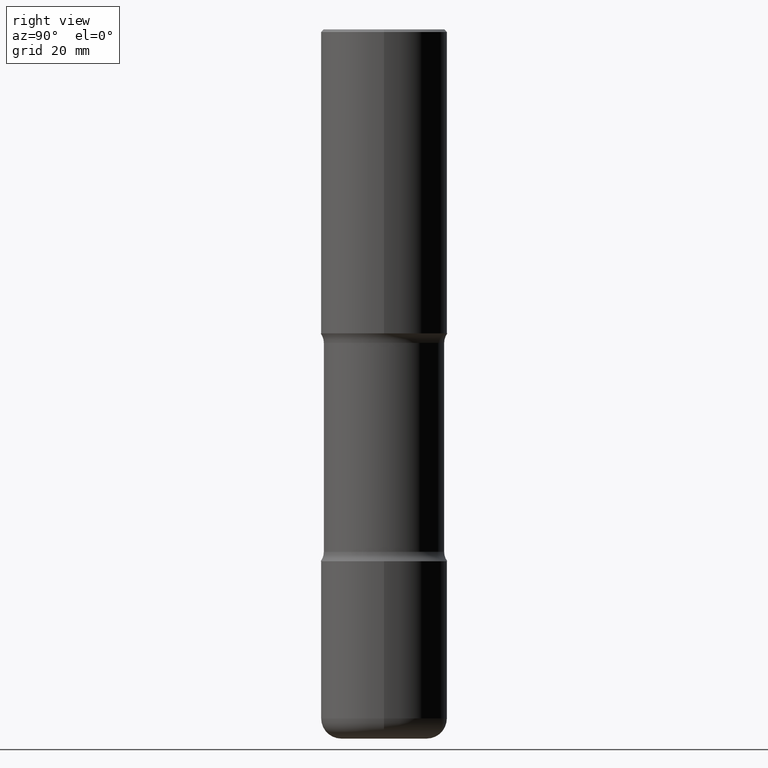
[diagram: clean part render]
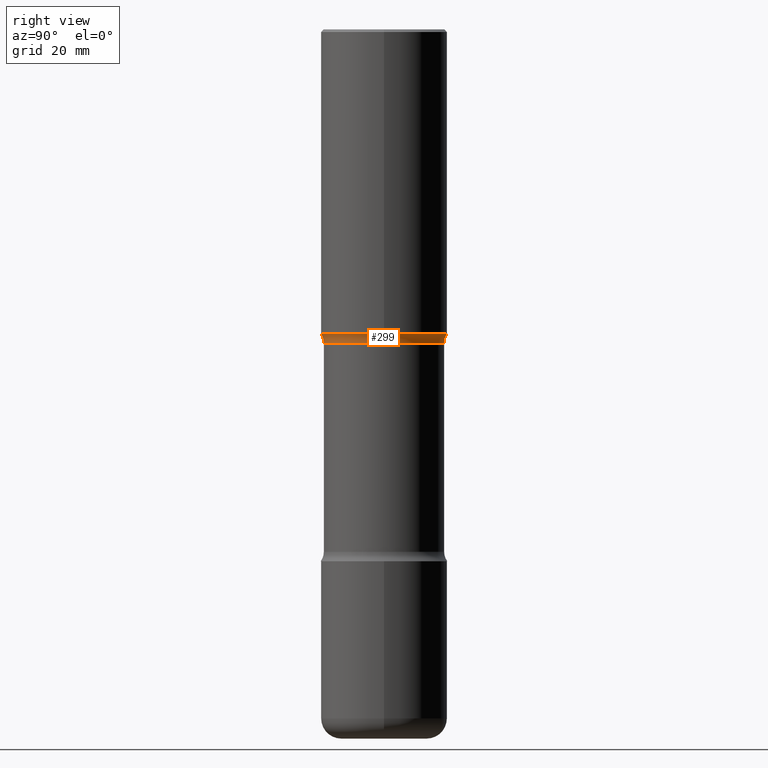
[diagram: same view with one face highlighted and labeled with its STEP entity id]
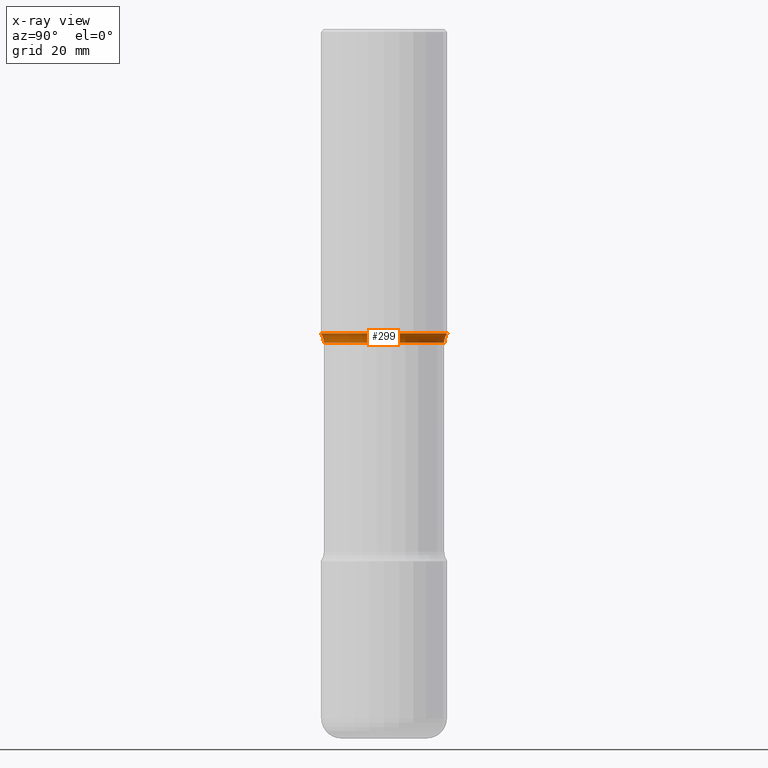
[diagram: x-ray of the same camera — body ghosted, the highlighted face saturated]
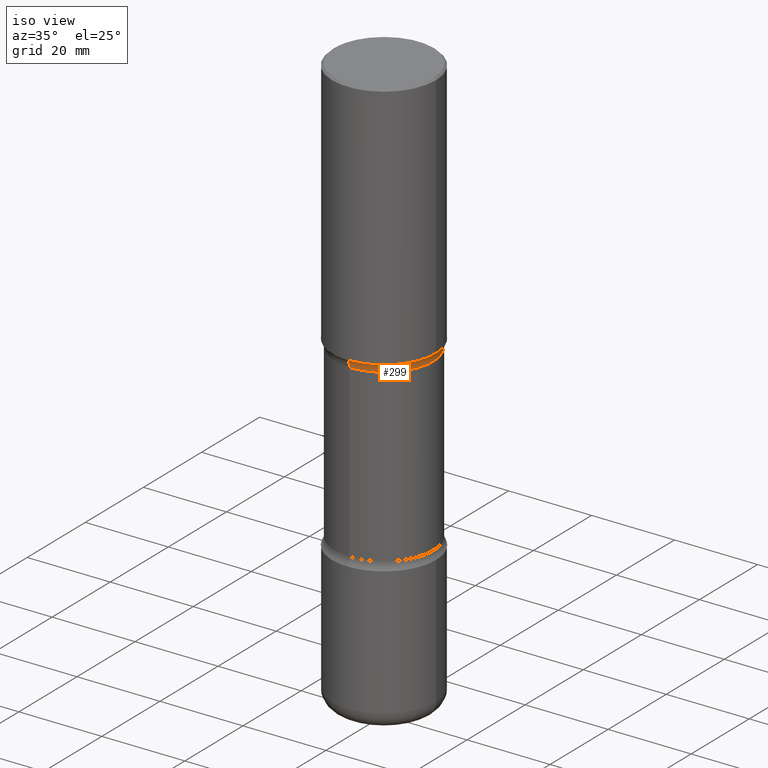
[diagram: same view with one face highlighted and labeled with its STEP entity id]
A machine part, right view. The second image highlights one B-rep face of the part: STEP entity #299.
The next image is the same camera in x-ray: the body ghosted, the highlighted face saturated — about 0% of this face is hidden behind the body in this view.
A second angle (iso view) of the same face is appended — the face is thin or edge-on in the first view.
In plain terms, the highlighted toroidal blend (fillet) surface has major radius 15.0495 mm and minor (blend) radius 3.175 mm.
Its self-contained STEP definition (entity closure, byte-faithful):
#10 = AXIS2_PLACEMENT_3D ( 'NONE', #337, #134, #478 ) ;
#26 = EDGE_CURVE ( 'NONE', #72, #298, #401, .T. ) ;
#55 = CARTESIAN_POINT ( 'NONE',  ( -3.376394089603205408E-15, -0.4921500000000088582, -2.362199999999998301 ) ) ;
#58 = FACE_OUTER_BOUND ( 'NONE', #249, .T. ) ;
#60 = EDGE_CURVE ( 'NONE', #72, #339, #540, .T. ) ;
#68 = CARTESIAN_POINT ( 'NONE',  ( 5.628498264023999301E-29, -8.459791083684410313E-15, -2.362199999999999633 ) ) ;
#72 = VERTEX_POINT ( 'NONE', #475 ) ;
#74 = CIRCLE ( 'NONE', #10, 0.1250000000000000278 ) ;
#104 = AXIS2_PLACEMENT_3D ( 'NONE', #68, #269, #111 ) ;
#111 = DIRECTION ( 'NONE',  ( 6.982962677686265922E-15, 1.000000000000000000, -3.330506545156063496E-15 ) ) ;
#134 = DIRECTION ( 'NONE',  ( 1.000000000000000000, -6.860497997771530774E-15, 4.842265841865007537E-29 ) ) ;
#136 = CIRCLE ( 'NONE', #104, 0.4921500000000003650 ) ;
#168 = DIRECTION ( 'NONE',  ( 6.982962677686266711E-15, 1.000000000000000000, -3.506115072082477581E-15 ) ) ;
#209 = AXIS2_PLACEMENT_3D ( 'NONE', #394, #529, #420 ) ;
#210 = AXIS2_PLACEMENT_3D ( 'NONE', #528, #531, #449 ) ;
#222 = CARTESIAN_POINT ( 'NONE',  ( -3.291838451780669043E-15, -0.4675000000000086864, -2.436731050576252056 ) ) ;
#249 = EDGE_LOOP ( 'NONE', ( #293, #476, #282, #465 ) ) ;
#255 = EDGE_CURVE ( 'NONE', #339, #454, #74, .T. ) ;
#269 = DIRECTION ( 'NONE',  ( 2.529115312138246887E-29, -3.371694781454833941E-15, -1.000000000000000000 ) ) ;
#282 = ORIENTED_EDGE ( 'NONE', *, *, #26, .T. ) ;
#293 = ORIENTED_EDGE ( 'NONE', *, *, #255, .F. ) ;
#298 = VERTEX_POINT ( 'NONE', #494 ) ;
#299 = ADVANCED_FACE ( 'NONE', ( #58 ), #502, .F. ) ;
#304 = EDGE_CURVE ( 'NONE', #298, #454, #136, .T. ) ;
#337 = CARTESIAN_POINT ( 'NONE',  ( -4.064845063679573728E-15, -0.5925000000000086864, -2.436731050576251612 ) ) ;
#339 = VERTEX_POINT ( 'NONE', #222 ) ;
#394 = CARTESIAN_POINT ( 'NONE',  ( 4.137405386529170928E-15, 0.5924999999999912559, -2.436731050576255164 ) ) ;
#401 = CIRCLE ( 'NONE', #209, 0.1250000000000000278 ) ;
#420 = DIRECTION ( 'NONE',  ( -6.982962677686265133E-15, -1.000000000000000000, 0.000000000000000000 ) ) ;
#449 = DIRECTION ( 'NONE',  ( 6.982962677686266711E-15, 1.000000000000000000, -3.371694781454834335E-15 ) ) ;
#454 = VERTEX_POINT ( 'NONE', #55 ) ;
#465 = ORIENTED_EDGE ( 'NONE', *, *, #304, .T. ) ;
#466 = AXIS2_PLACEMENT_3D ( 'NONE', #552, #516, #168 ) ;
#475 = CARTESIAN_POINT ( 'NONE',  ( 3.264535051818387195E-15, 0.4674999999999912004, -2.436731050576255164 ) ) ;
#476 = ORIENTED_EDGE ( 'NONE', *, *, #60, .F. ) ;
#478 = DIRECTION ( 'NONE',  ( 6.860497997771532351E-15, 1.000000000000000000, 0.000000000000000000 ) ) ;
#494 = CARTESIAN_POINT ( 'NONE',  ( 3.436665081823354547E-15, 0.4921499999999918162, -2.362200000000001410 ) ) ;
#502 = TOROIDAL_SURFACE ( 'NONE', #210, 0.5924999999999999156, 0.1250000000000000278 ) ;
#516 = DIRECTION ( 'NONE',  ( 2.529115312138246887E-29, -3.371694781454833941E-15, -1.000000000000000000 ) ) ;
#528 = CARTESIAN_POINT ( 'NONE',  ( 5.815876828890441734E-29, -8.712689590391461235E-15, -2.436731050576253388 ) ) ;
#529 = DIRECTION ( 'NONE',  ( -1.000000000000000000, 6.982962677686265922E-15, -4.883557194083112340E-29 ) ) ;
#531 = DIRECTION ( 'NONE',  ( 2.529115312138246887E-29, -3.371694781454833941E-15, -1.000000000000000000 ) ) ;
#540 = CIRCLE ( 'NONE', #466, 0.4674999999999999156 ) ;
#552 = CARTESIAN_POINT ( 'NONE',  ( 5.816995885266152861E-29, -8.711087037968711425E-15, -2.436731050576253388 ) ) ;